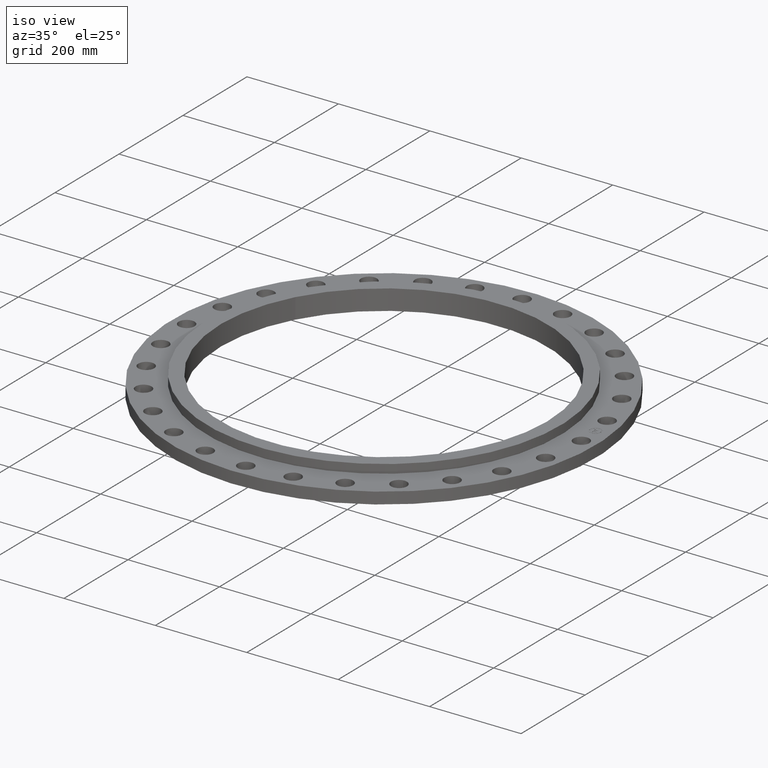
[diagram: clean part render]
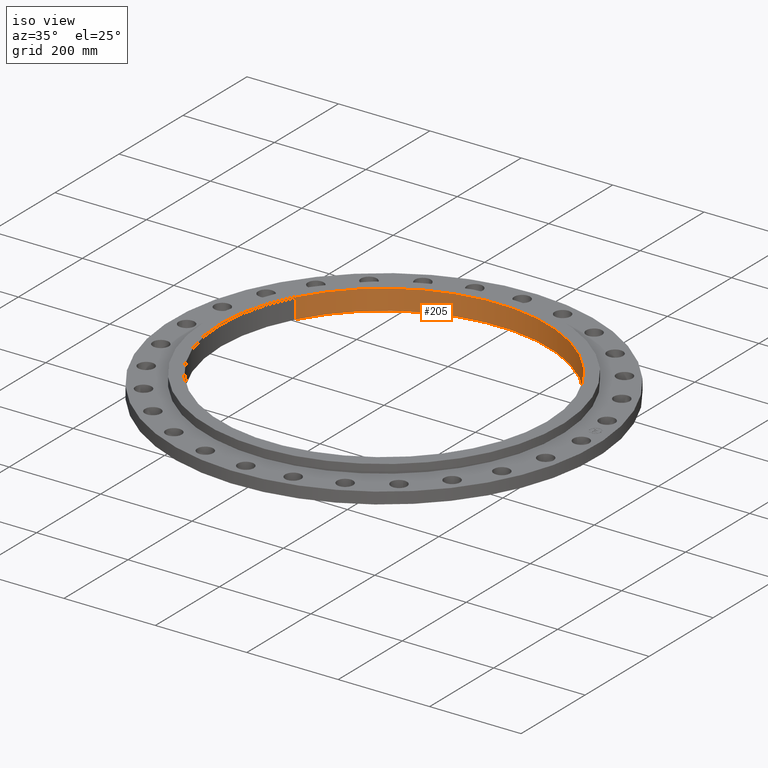
[diagram: same view with one face highlighted and labeled with its STEP entity id]
A machine part, iso view. The second image highlights one B-rep face of the part: STEP entity #205.
In plain terms, the highlighted cylindrical surface (partial cylindrical patch) has radius 358.013 mm, axis along (0, -0, -1).
Its self-contained STEP definition (entity closure, byte-faithful):
#152=AXIS2_PLACEMENT_3D('Cylinder Axis2P3D',#149,#150,#151) ;
#191=AXIS2_PLACEMENT_3D('Circle Axis2P3D',#189,#190,$) ;
#196=AXIS2_PLACEMENT_3D('Circle Axis2P3D',#194,#195,$) ;
#149=CARTESIAN_POINT('Axis2P3D Location',(-6.64385432059E-016,-2.09805925913E-016,0.99606299213)) ;
#154=CARTESIAN_POINT('Line Origine',(12.3695262099,-6.75750296665,0.875000000004)) ;
#158=CARTESIAN_POINT('Vertex',(12.3695262099,-6.75750296665,0.)) ;
#160=CARTESIAN_POINT('Vertex',(12.3695262099,-6.75750296665,1.75000000001)) ;
#167=CARTESIAN_POINT('Vertex',(-12.3695262099,6.75750296665,0.)) ;
#170=CARTESIAN_POINT('Line Origine',(-12.3695262099,6.75750296665,0.875000000004)) ;
#174=CARTESIAN_POINT('Vertex',(-12.3695262099,6.75750296665,1.75000000001)) ;
#189=CARTESIAN_POINT('Axis2P3D Location',(-6.64385432059E-016,-2.09805925913E-016,0.)) ;
#194=CARTESIAN_POINT('Axis2P3D Location',(-6.64385432059E-016,-2.09805925913E-016,1.75000000001)) ;
#150=DIRECTION('Axis2P3D Direction',(0.,-0.,-0.0393700787402)) ;
#151=DIRECTION('Axis2P3D XDirection',(-0.0345504945626,0.0188750212049,0.)) ;
#155=DIRECTION('Vector Direction',(0.,0.,-0.0393700787402)) ;
#171=DIRECTION('Vector Direction',(0.,0.,-0.0393700787402)) ;
#190=DIRECTION('Axis2P3D Direction',(0.,-0.,-0.0393700787402)) ;
#195=DIRECTION('Axis2P3D Direction',(0.,-0.,-0.0393700787402)) ;
#156=VECTOR('Line Direction',#155,0.0393700787402) ;
#172=VECTOR('Line Direction',#171,0.0393700787402) ;
#200=ORIENTED_EDGE('',*,*,#176,.F.) ;
#201=ORIENTED_EDGE('',*,*,#193,.F.) ;
#202=ORIENTED_EDGE('',*,*,#162,.T.) ;
#203=ORIENTED_EDGE('',*,*,#198,.T.) ;
#205=ADVANCED_FACE('PartBody',(#204),#153,.F.) ;
#192=CIRCLE('generated circle',#191,14.0950000001) ;
#197=CIRCLE('generated circle',#196,14.0950000001) ;
#153=CYLINDRICAL_SURFACE('generated cylinder',#152,14.0950000001) ;
#162=EDGE_CURVE('',#159,#161,#157,.F.) ;
#176=EDGE_CURVE('',#168,#175,#173,.F.) ;
#193=EDGE_CURVE('',#159,#168,#192,.F.) ;
#198=EDGE_CURVE('',#161,#175,#197,.F.) ;
#199=EDGE_LOOP('',(#200,#201,#202,#203)) ;
#204=FACE_OUTER_BOUND('',#199,.T.) ;
#157=LINE('Line',#154,#156) ;
#173=LINE('Line',#170,#172) ;
#159=VERTEX_POINT('',#158) ;
#161=VERTEX_POINT('',#160) ;
#168=VERTEX_POINT('',#167) ;
#175=VERTEX_POINT('',#174) ;